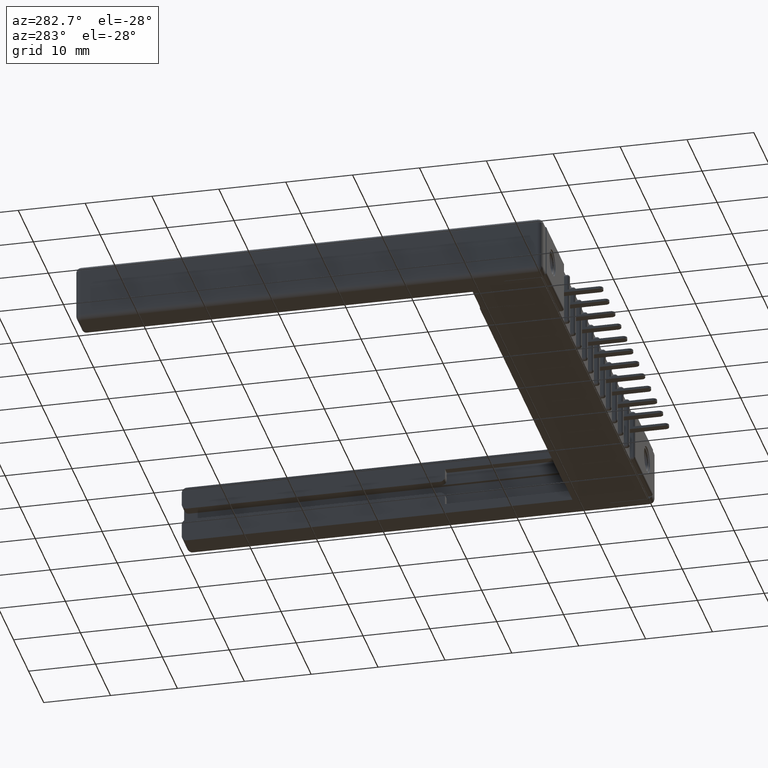
[diagram: clean part render]
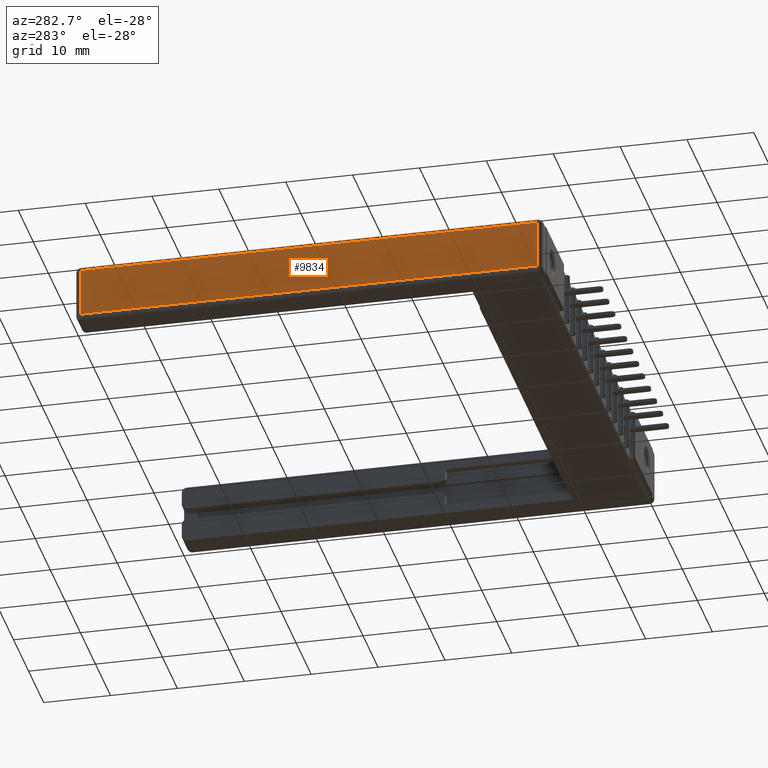
[diagram: same view with one face highlighted and labeled with its STEP entity id]
A machine part, auxiliary view. The second image highlights one B-rep face of the part: STEP entity #9834.
In plain terms, the highlighted planar face has unit normal (-1, 0, 0).
Its self-contained STEP definition (entity closure, byte-faithful):
#802 = ORIENTED_EDGE ( 'NONE', *, *, #11176, .T. ) ;
#2496 = LINE ( 'NONE', #10451, #13677 ) ;
#2500 = DIRECTION ( 'NONE',  ( 0.0000000000000000000, -1.000000000000000000, 0.0000000000000000000 ) ) ;
#2764 = CARTESIAN_POINT ( 'NONE',  ( 0.0000000000000000000, 0.02999999999999998848, -0.02999999999999999889 ) ) ;
#3932 = EDGE_CURVE ( 'NONE', #8083, #8305, #13164, .T. ) ;
#4376 = VECTOR ( 'NONE', #13077, 39.37007874015748143 ) ;
#6171 = ORIENTED_EDGE ( 'NONE', *, *, #16888, .T. ) ;
#7088 = DIRECTION ( 'NONE',  ( 0.0000000000000000000, 0.0000000000000000000, 1.000000000000000000 ) ) ;
#7615 = EDGE_LOOP ( 'NONE', ( #8707, #802, #8884, #6171 ) ) ;
#7622 = VERTEX_POINT ( 'NONE', #10479 ) ;
#8083 = VERTEX_POINT ( 'NONE', #2764 ) ;
#8254 = PLANE ( 'NONE',  #15347 ) ;
#8305 = VERTEX_POINT ( 'NONE', #15405 ) ;
#8707 = ORIENTED_EDGE ( 'NONE', *, *, #12171, .T. ) ;
#8884 = ORIENTED_EDGE ( 'NONE', *, *, #3932, .T. ) ;
#9112 = CARTESIAN_POINT ( 'NONE',  ( 0.0000000000000000000, 0.0000000000000000000, -0.3130000000000000004 ) ) ;
#9520 = DIRECTION ( 'NONE',  ( -1.000000000000000000, 0.0000000000000000000, 0.0000000000000000000 ) ) ;
#9802 = VECTOR ( 'NONE', #2500, 39.37007874015748143 ) ;
#9834 = ADVANCED_FACE ( 'NONE', ( #13480 ), #8254, .T. ) ;
#10451 = CARTESIAN_POINT ( 'NONE',  ( 0.0000000000000000000, 2.719999999999999751, -0.3430000000000000271 ) ) ;
#10479 = CARTESIAN_POINT ( 'NONE',  ( 0.0000000000000000000, 2.719999999999999751, -0.3130000000000000004 ) ) ;
#10540 = DIRECTION ( 'NONE',  ( -0.0000000000000000000, -0.0000000000000000000, -1.000000000000000000 ) ) ;
#11176 = EDGE_CURVE ( 'NONE', #13538, #8083, #14198, .T. ) ;
#11497 = CARTESIAN_POINT ( 'NONE',  ( 0.0000000000000000000, 0.02999999999999998848, -0.3430000000000000271 ) ) ;
#12171 = EDGE_CURVE ( 'NONE', #7622, #13538, #14866, .T. ) ;
#12422 = VECTOR ( 'NONE', #7088, 39.37007874015748143 ) ;
#13077 = DIRECTION ( 'NONE',  ( -0.0000000000000000000, 1.000000000000000000, -0.0000000000000000000 ) ) ;
#13164 = LINE ( 'NONE', #16051, #4376 ) ;
#13480 = FACE_OUTER_BOUND ( 'NONE', #7615, .T. ) ;
#13532 = CARTESIAN_POINT ( 'NONE',  ( 0.0000000000000000000, 0.02999999999999998848, -0.3130000000000000004 ) ) ;
#13538 = VERTEX_POINT ( 'NONE', #13532 ) ;
#13677 = VECTOR ( 'NONE', #10540, 39.37007874015748143 ) ;
#14198 = LINE ( 'NONE', #11497, #12422 ) ;
#14866 = LINE ( 'NONE', #9112, #9802 ) ;
#15024 = DIRECTION ( 'NONE',  ( 0.0000000000000000000, 0.0000000000000000000, 1.000000000000000000 ) ) ;
#15347 = AXIS2_PLACEMENT_3D ( 'NONE', #17787, #9520, #15024 ) ;
#15405 = CARTESIAN_POINT ( 'NONE',  ( 0.0000000000000000000, 2.719999999999999751, -0.02999999999999999889 ) ) ;
#16051 = CARTESIAN_POINT ( 'NONE',  ( 0.0000000000000000000, 2.750000000000000000, -0.02999999999999999889 ) ) ;
#16888 = EDGE_CURVE ( 'NONE', #8305, #7622, #2496, .T. ) ;
#17787 = CARTESIAN_POINT ( 'NONE',  ( 0.0000000000000000000, 0.0000000000000000000, -0.3430000000000000271 ) ) ;